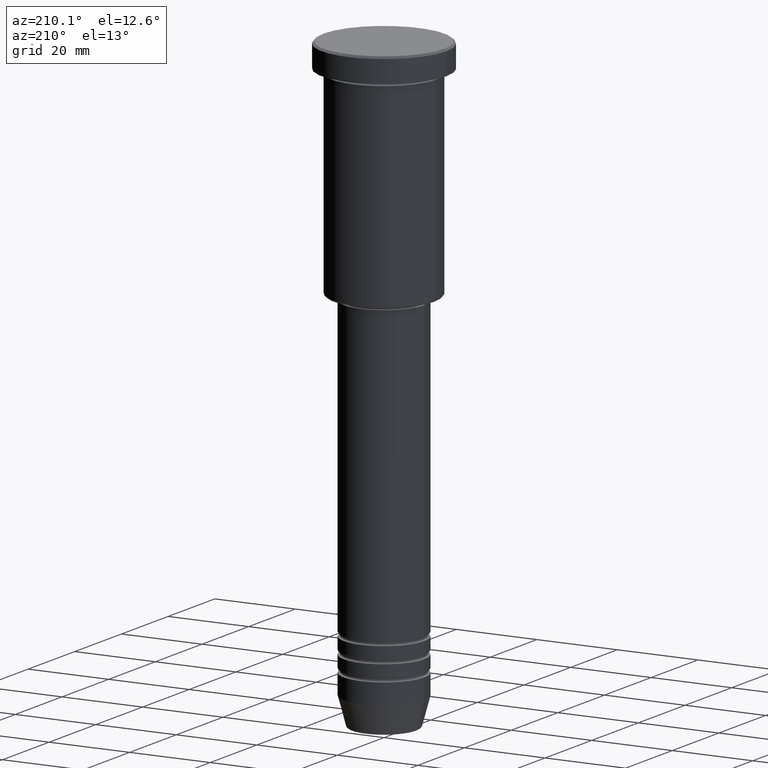
[diagram: clean part render]
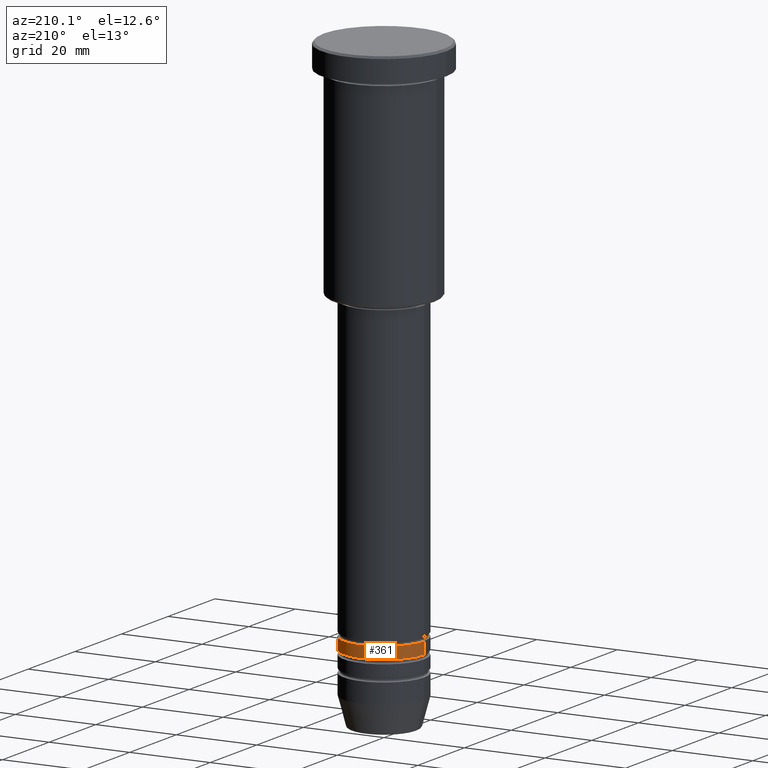
[diagram: same view with one face highlighted and labeled with its STEP entity id]
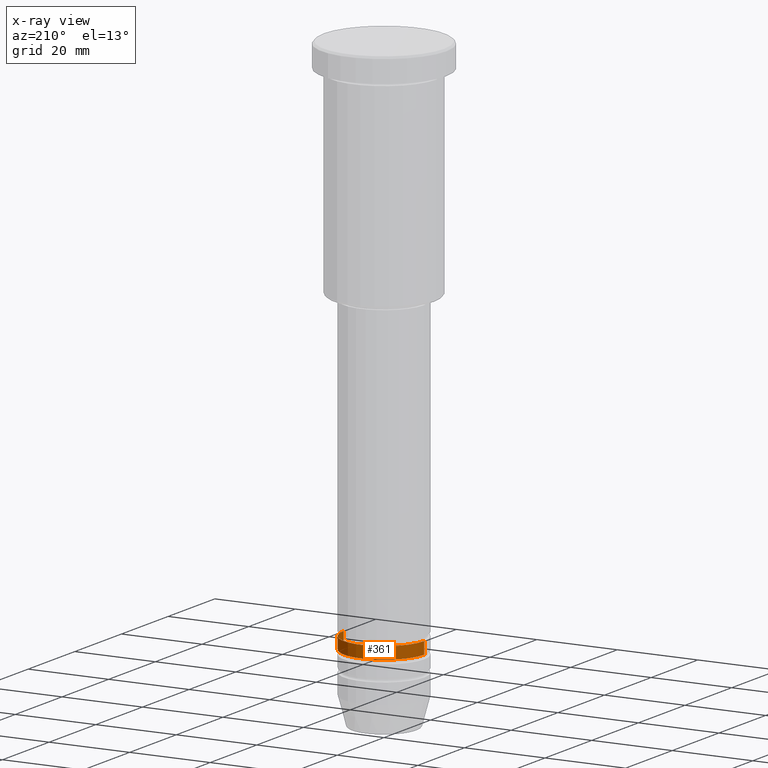
[diagram: x-ray of the same camera — body ghosted, the highlighted face saturated]
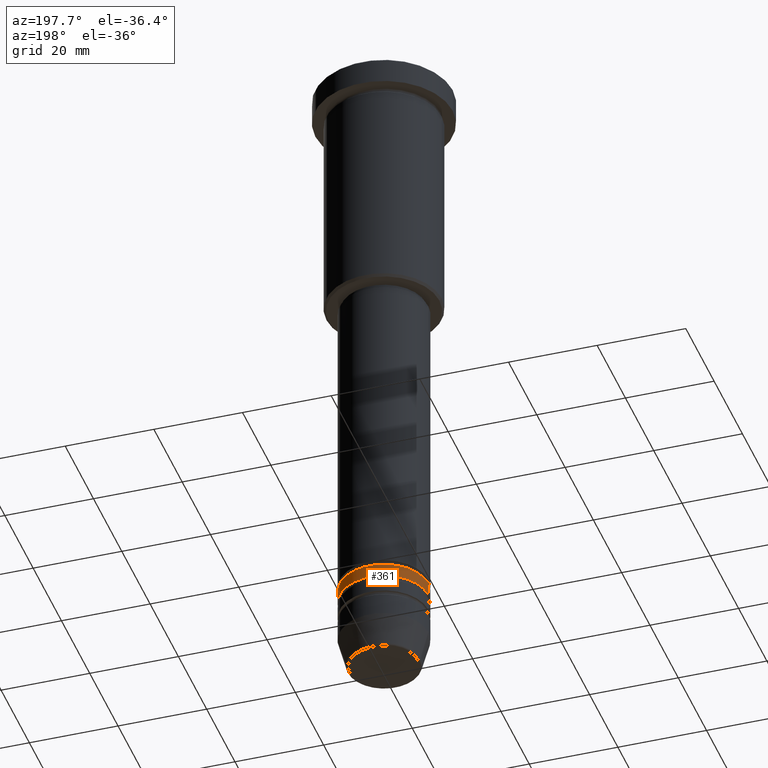
[diagram: same view with one face highlighted and labeled with its STEP entity id]
A machine part, auxiliary view. The second image highlights one B-rep face of the part: STEP entity #361.
The next image is the same camera in x-ray: the body ghosted, the highlighted face saturated — about 0% of this face is hidden behind the body in this view.
A second angle (auxiliary view) of the same face is appended — the face is thin or edge-on in the first view.
In plain terms, the highlighted cylindrical surface (partial cylindrical patch) has radius 10 mm, axis along (-0, -0, 1).
Its self-contained STEP definition (entity closure, byte-faithful):
#2 = LINE ( 'NONE', #737, #688 ) ;
#41 = ORIENTED_EDGE ( 'NONE', *, *, #788, .F. ) ;
#48 = VERTEX_POINT ( 'NONE', #655 ) ;
#180 = DIRECTION ( 'NONE',  ( -0.000000000000000000, -0.000000000000000000, 1.000000000000000000 ) ) ;
#193 = VERTEX_POINT ( 'NONE', #1077 ) ;
#207 = CARTESIAN_POINT ( 'NONE',  ( 0.000000000000000000, 0.000000000000000000, -133.9999999999999147 ) ) ;
#225 = CARTESIAN_POINT ( 'NONE',  ( 0.000000000000000000, 0.000000000000000000, 0.000000000000000000 ) ) ;
#238 = DIRECTION ( 'NONE',  ( -0.000000000000000000, -0.000000000000000000, 1.000000000000000000 ) ) ;
#316 = AXIS2_PLACEMENT_3D ( 'NONE', #225, #238, #1127 ) ;
#329 = DIRECTION ( 'NONE',  ( -0.000000000000000000, -0.000000000000000000, 1.000000000000000000 ) ) ;
#361 = ADVANCED_FACE ( 'NONE', ( #487 ), #1137, .T. ) ;
#386 = AXIS2_PLACEMENT_3D ( 'NONE', #207, #180, #752 ) ;
#408 = CIRCLE ( 'NONE', #386, 10.00000000000000178 ) ;
#429 = CIRCLE ( 'NONE', #546, 10.00000000000000000 ) ;
#487 = FACE_OUTER_BOUND ( 'NONE', #1135, .T. ) ;
#491 = ORIENTED_EDGE ( 'NONE', *, *, #1170, .T. ) ;
#501 = EDGE_CURVE ( 'NONE', #731, #885, #2, .T. ) ;
#519 = CARTESIAN_POINT ( 'NONE',  ( 10.00000000000000178, 0.000000000000000000, 0.000000000000000000 ) ) ;
#546 = AXIS2_PLACEMENT_3D ( 'NONE', #712, #329, #886 ) ;
#554 = DIRECTION ( 'NONE',  ( -0.000000000000000000, -0.000000000000000000, 1.000000000000000000 ) ) ;
#650 = VECTOR ( 'NONE', #882, 1000.000000000000000 ) ;
#655 = CARTESIAN_POINT ( 'NONE',  ( 10.00000000000000000, 0.000000000000000000, -130.9999999999998863 ) ) ;
#688 = VECTOR ( 'NONE', #554, 1000.000000000000000 ) ;
#712 = CARTESIAN_POINT ( 'NONE',  ( 0.000000000000000000, 0.000000000000000000, -130.9999999999998863 ) ) ;
#731 = VERTEX_POINT ( 'NONE', #1045 ) ;
#737 = CARTESIAN_POINT ( 'NONE',  ( -10.00000000000000178, 1.224646799147353454E-15, 0.000000000000000000 ) ) ;
#752 = DIRECTION ( 'NONE',  ( 1.000000000000000000, 0.000000000000000000, 0.000000000000000000 ) ) ;
#788 = EDGE_CURVE ( 'NONE', #193, #48, #1163, .T. ) ;
#821 = EDGE_CURVE ( 'NONE', #48, #885, #429, .T. ) ;
#850 = ORIENTED_EDGE ( 'NONE', *, *, #501, .T. ) ;
#882 = DIRECTION ( 'NONE',  ( -0.000000000000000000, -0.000000000000000000, 1.000000000000000000 ) ) ;
#885 = VERTEX_POINT ( 'NONE', #951 ) ;
#886 = DIRECTION ( 'NONE',  ( 1.000000000000000000, 0.000000000000000000, 0.000000000000000000 ) ) ;
#951 = CARTESIAN_POINT ( 'NONE',  ( -10.00000000000000000, 1.224646799147353256E-15, -130.9999999999998863 ) ) ;
#1045 = CARTESIAN_POINT ( 'NONE',  ( -10.00000000000000178, 1.224646799147353454E-15, -133.9999999999999147 ) ) ;
#1077 = CARTESIAN_POINT ( 'NONE',  ( 10.00000000000000178, 0.000000000000000000, -133.9999999999999147 ) ) ;
#1127 = DIRECTION ( 'NONE',  ( 1.000000000000000000, 0.000000000000000000, 0.000000000000000000 ) ) ;
#1135 = EDGE_LOOP ( 'NONE', ( #491, #850, #1155, #41 ) ) ;
#1137 = CYLINDRICAL_SURFACE ( 'NONE', #316, 10.00000000000000178 ) ;
#1155 = ORIENTED_EDGE ( 'NONE', *, *, #821, .F. ) ;
#1163 = LINE ( 'NONE', #519, #650 ) ;
#1170 = EDGE_CURVE ( 'NONE', #193, #731, #408, .T. ) ;